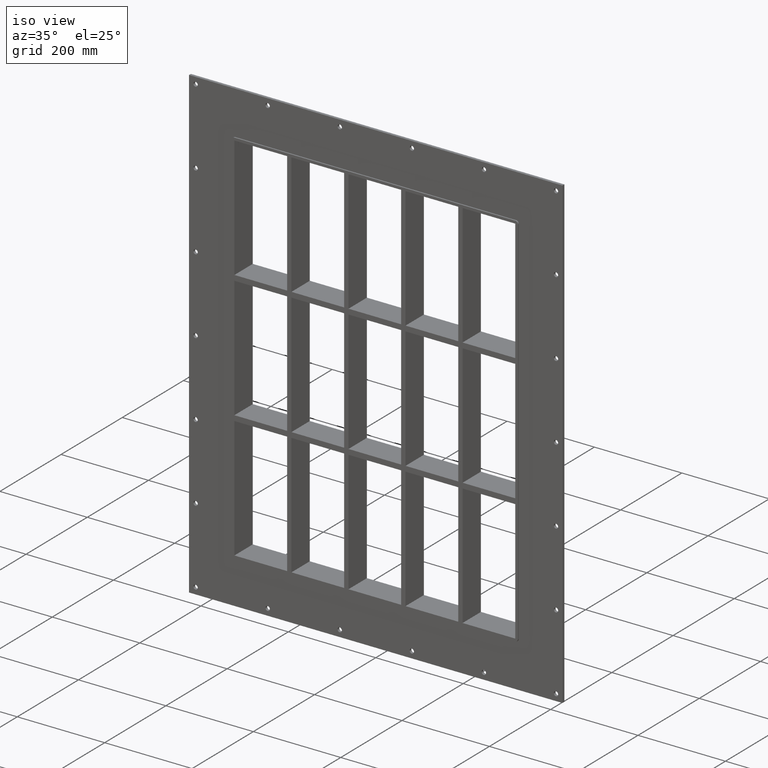
[diagram: clean part render]
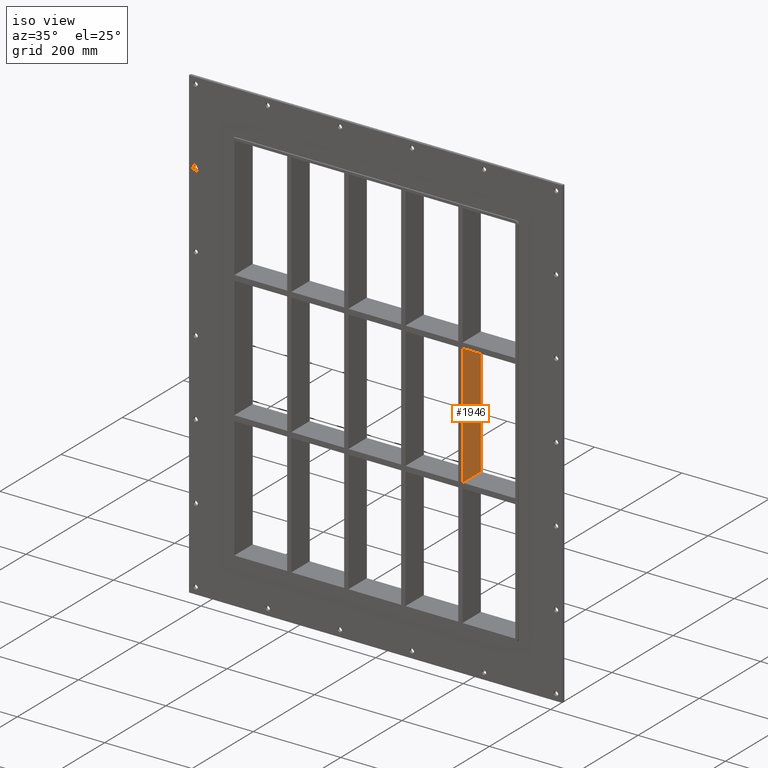
[diagram: same view with one face highlighted and labeled with its STEP entity id]
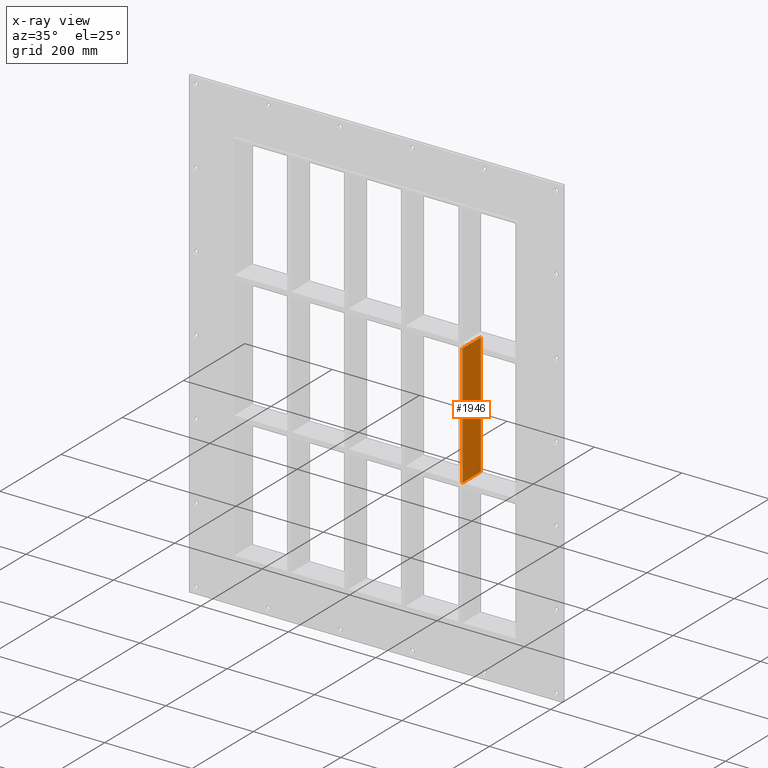
[diagram: x-ray of the same camera — body ghosted, the highlighted face saturated]
A machine part, iso view. The second image highlights one B-rep face of the part: STEP entity #1946.
The next image is the same camera in x-ray: the body ghosted, the highlighted face saturated — about 0% of this face is hidden behind the body in this view.
In plain terms, the highlighted planar face has unit normal (1, 0, 0).
Its self-contained STEP definition (entity closure, byte-faithful):
#809=CARTESIAN_POINT('',(200.74999999999278,57.0,138.99999999999071));
#810=VERTEX_POINT('',#809);
#811=CARTESIAN_POINT('',(200.74999999999278,-3.0,138.99999999999071));
#812=VERTEX_POINT('',#811);
#813=CARTESIAN_POINT('',(200.74999999999278,57.0,138.99999999999071));
#814=DIRECTION('',(0.0,-1.0,0.0));
#815=VECTOR('',#814,60.0);
#816=LINE('',#813,#815);
#817=EDGE_CURVE('',#810,#812,#816,.T.);
#1594=CARTESIAN_POINT('',(200.74999999999278,57.0,-139.00000000000006));
#1595=VERTEX_POINT('',#1594);
#1596=CARTESIAN_POINT('',(200.74999999999278,57.0,138.99999999999073));
#1597=DIRECTION('',(0.0,0.0,-1.0));
#1598=VECTOR('',#1597,277.99999999999079);
#1599=LINE('',#1596,#1598);
#1600=EDGE_CURVE('',#810,#1595,#1599,.T.);
#1923=CARTESIAN_POINT('',(200.74999999999278,-3.0,429.00000000000006));
#1924=DIRECTION('',(1.0,0.0,0.0));
#1925=DIRECTION('',(0.0,0.0,-1.0));
#1926=AXIS2_PLACEMENT_3D('',#1923,#1924,#1925);
#1927=PLANE('',#1926);
#1928=ORIENTED_EDGE('',*,*,#817,.T.);
#1929=CARTESIAN_POINT('',(200.74999999999278,-3.0,-139.00000000000006));
#1930=VERTEX_POINT('',#1929);
#1931=CARTESIAN_POINT('',(200.74999999999278,-3.0,138.99999999999073));
#1932=DIRECTION('',(0.0,0.0,-1.0));
#1933=VECTOR('',#1932,277.99999999999079);
#1934=LINE('',#1931,#1933);
#1935=EDGE_CURVE('',#812,#1930,#1934,.T.);
#1936=ORIENTED_EDGE('',*,*,#1935,.T.);
#1937=CARTESIAN_POINT('',(200.74999999999278,57.0,-139.00000000000006));
#1938=DIRECTION('',(0.0,-1.0,0.0));
#1939=VECTOR('',#1938,60.0);
#1940=LINE('',#1937,#1939);
#1941=EDGE_CURVE('',#1595,#1930,#1940,.T.);
#1942=ORIENTED_EDGE('',*,*,#1941,.F.);
#1943=ORIENTED_EDGE('',*,*,#1600,.F.);
#1944=EDGE_LOOP('',(#1928,#1936,#1942,#1943));
#1945=FACE_OUTER_BOUND('',#1944,.T.);
#1946=ADVANCED_FACE('',(#1945),#1927,.T.);